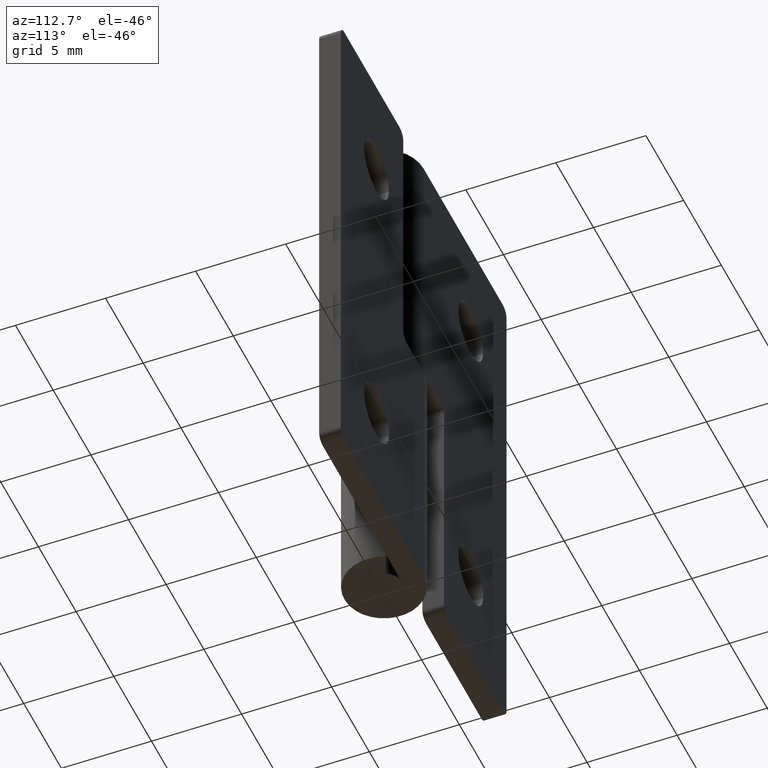
[diagram: clean part render]
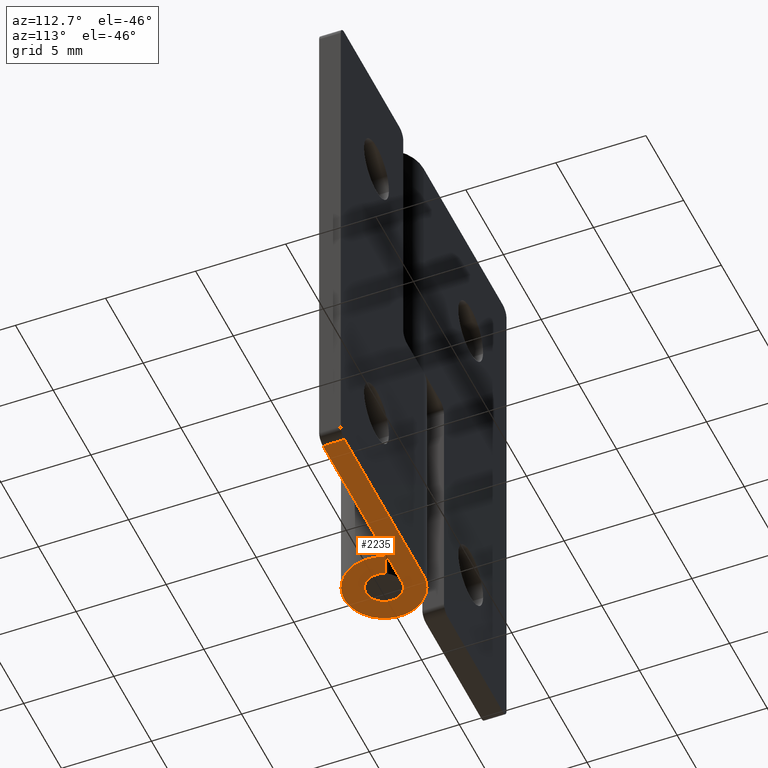
[diagram: same view with one face highlighted and labeled with its STEP entity id]
A machine part, auxiliary view. The second image highlights one B-rep face of the part: STEP entity #2235.
In plain terms, the highlighted face is a freeform B-spline surface patch.
Its self-contained STEP definition (entity closure, byte-faithful):
#2066=CARTESIAN_POINT('',(10.500000000000000,1.0,0.0));
#2067=VERTEX_POINT('',#2066);
#2083=CARTESIAN_POINT('',(10.500000000000000,2.200000999999950,0.0));
#2084=VERTEX_POINT('',#2083);
#2085=CARTESIAN_POINT('',(10.500000000000000,2.200000999999950,0.0));
#2086=CARTESIAN_POINT('',(10.500000000000000,1.0,0.0));
#2087=QUASI_UNIFORM_CURVE('',1,(#2085,#2086),.UNSPECIFIED.,.F.,.U.);
#2088=EDGE_CURVE('',#2084,#2067,#2087,.T.);
#2166=CARTESIAN_POINT('',(-2.833748043917603,-2.417310352967681,0.0));
#2167=CARTESIAN_POINT('',(11.134335966301970,-2.417310352967681,0.0));
#2168=CARTESIAN_POINT('',(-2.833748043917603,2.419663667177656,0.0));
#2169=CARTESIAN_POINT('',(11.134335966301970,2.419663667177656,0.0));
#2170=B_SPLINE_SURFACE_WITH_KNOTS('',1,1,((#2166,#2168),(#2167,#2169)),.UNSPECIFIED.,.F.,.F.,.U.,(2,2),(2,2),(0.0,13.968084010219570),(0.0,4.836974020145336),.UNSPECIFIED.);
#2171=ORIENTED_EDGE('',*,*,#2088,.T.);
#2172=CARTESIAN_POINT('',(0.0,1.0,0.0));
#2173=VERTEX_POINT('',#2172);
#2174=CARTESIAN_POINT('',(0.0,1.0,0.0));
#2175=CARTESIAN_POINT('',(10.500000000000000,1.0,0.0));
#2176=QUASI_UNIFORM_CURVE('',1,(#2174,#2175),.UNSPECIFIED.,.F.,.U.);
#2177=EDGE_CURVE('',#2173,#2067,#2176,.T.);
#2178=ORIENTED_EDGE('',*,*,#2177,.F.);
#2179=CARTESIAN_POINT('',(0.901960674226564,0.431818181818183,0.0));
#2180=VERTEX_POINT('',#2179);
#2181=CARTESIAN_POINT('',(0.901960674226564,0.431818181818184,0.0));
#2182=CARTESIAN_POINT('',(1.226743514746886,-0.246572312485437,0.0));
#2183=CARTESIAN_POINT('',(0.665064208508542,-0.746786179947719,0.0));
#2184=CARTESIAN_POINT('',(0.103384902270198,-1.247000047410000,0.0));
#2185=CARTESIAN_POINT('',(-0.533001790889025,-0.846114112226650,0.0));
#2186=CARTESIAN_POINT('',(-1.169388484048249,-0.445228177043300,0.0));
#2187=CARTESIAN_POINT('',(-0.960758583679233,0.277385911478350,0.0));
#2188=CARTESIAN_POINT('',(-0.752128683310216,1.0,0.0));
#2189=CARTESIAN_POINT('',(0.0,1.0,0.0));
#2197=(BOUNDED_CURVE()B_SPLINE_CURVE(2,(#2181,#2182,#2183,#2184,#2185,#2186,#2187,#2188,#2189),.UNSPECIFIED.,.F.,.U.)B_SPLINE_CURVE_WITH_KNOTS((3,2,2,2,3),(0.0,0.250000000000000,0.500000000000000,0.750000000000000,1.0),.UNSPECIFIED.)CURVE()GEOMETRIC_REPRESENTATION_ITEM()RATIONAL_B_SPLINE_CURVE((1.0,0.799182679829321,1.0,0.799182679829321,1.0,0.799182679829321,1.0,0.799182679829321,1.0))REPRESENTATION_ITEM(''));
#2198=EDGE_CURVE('',#2180,#2173,#2197,.T.);
#2199=ORIENTED_EDGE('',*,*,#2198,.F.);
#2200=CARTESIAN_POINT('',(1.984314385259115,0.950000431818184,0.0));
#2201=VERTEX_POINT('',#2200);
#2202=CARTESIAN_POINT('',(1.984314385259115,0.950000431818184,0.0));
#2203=CARTESIAN_POINT('',(0.901960674226564,0.431818181818183,0.0));
#2204=QUASI_UNIFORM_CURVE('',1,(#2202,#2203),.UNSPECIFIED.,.F.,.U.);
#2205=EDGE_CURVE('',#2201,#2180,#2204,.T.);
#2206=ORIENTED_EDGE('',*,*,#2205,.F.);
#2207=CARTESIAN_POINT('',(0.0,2.200001000000000,0.0));
#2208=VERTEX_POINT('',#2207);
#2209=CARTESIAN_POINT('',(1.984314385259116,0.950000431818184,0.0));
#2210=CARTESIAN_POINT('',(2.698836959186664,-0.542459334040276,0.0));
#2211=CARTESIAN_POINT('',(1.463141923783001,-1.642930342671161,0.0));
#2212=CARTESIAN_POINT('',(0.227446888379338,-2.743401351302047,0.0));
#2213=CARTESIAN_POINT('',(-1.172604472957645,-1.861451893012743,0.0));
#2214=CARTESIAN_POINT('',(-2.572655834294632,-0.979502434723438,0.0));
#2215=CARTESIAN_POINT('',(-2.113669844852895,0.610249282638282,0.0));
#2216=CARTESIAN_POINT('',(-1.654683855411160,2.200001000000000,0.0));
#2217=CARTESIAN_POINT('',(0.0,2.200001000000000,0.0));
#2225=(BOUNDED_CURVE()B_SPLINE_CURVE(2,(#2209,#2210,#2211,#2212,#2213,#2214,#2215,#2216,#2217),.UNSPECIFIED.,.F.,.U.)B_SPLINE_CURVE_WITH_KNOTS((3,2,2,2,3),(0.0,0.250000000000000,0.500000000000000,0.750000000000000,1.0),.UNSPECIFIED.)CURVE()GEOMETRIC_REPRESENTATION_ITEM()RATIONAL_B_SPLINE_CURVE((1.0,0.799182679829321,1.0,0.799182679829321,1.0,0.799182679829321,1.0,0.799182679829321,1.0))REPRESENTATION_ITEM(''));
#2226=EDGE_CURVE('',#2201,#2208,#2225,.T.);
#2227=ORIENTED_EDGE('',*,*,#2226,.T.);
#2228=CARTESIAN_POINT('',(10.500000000000000,2.200000999999950,0.0));
#2229=CARTESIAN_POINT('',(0.0,2.200001000000000,0.0));
#2230=QUASI_UNIFORM_CURVE('',1,(#2228,#2229),.UNSPECIFIED.,.F.,.U.);
#2231=EDGE_CURVE('',#2084,#2208,#2230,.T.);
#2232=ORIENTED_EDGE('',*,*,#2231,.F.);
#2233=EDGE_LOOP('',(#2171,#2178,#2199,#2206,#2227,#2232));
#2234=FACE_OUTER_BOUND('',#2233,.T.);
#2235=ADVANCED_FACE('',(#2234),#2170,.F.);